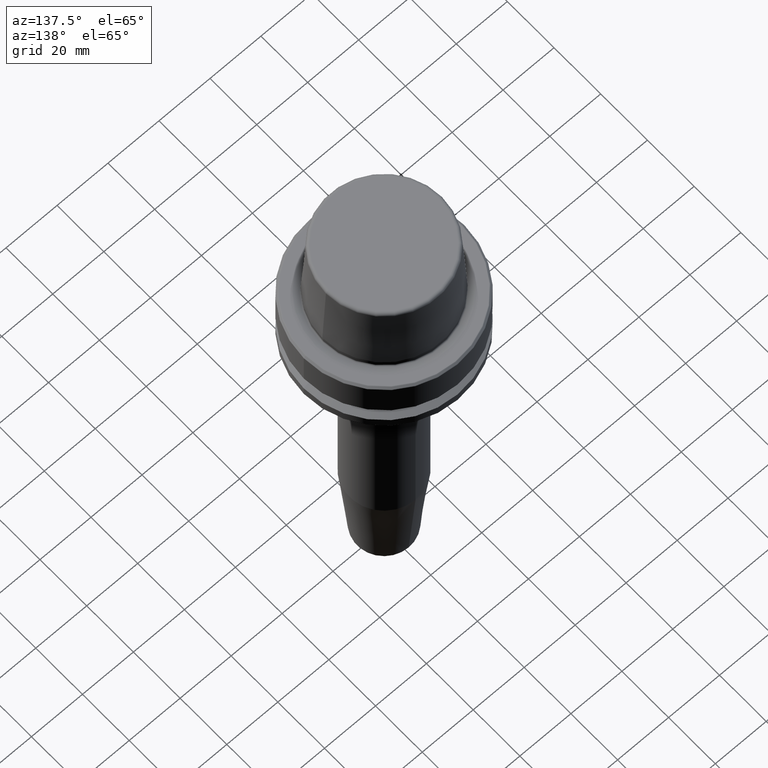
[diagram: clean part render]
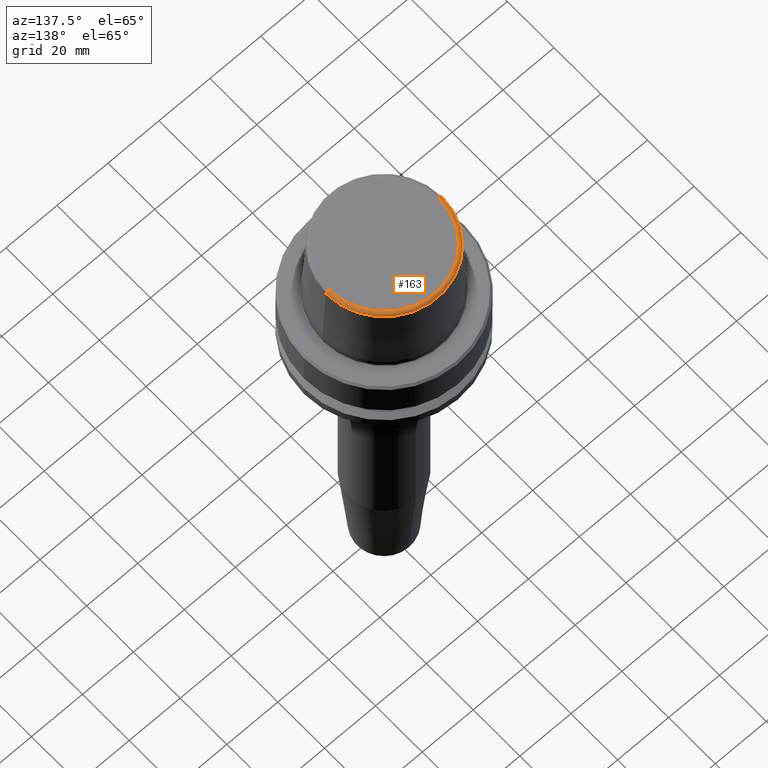
[diagram: same view with one face highlighted and labeled with its STEP entity id]
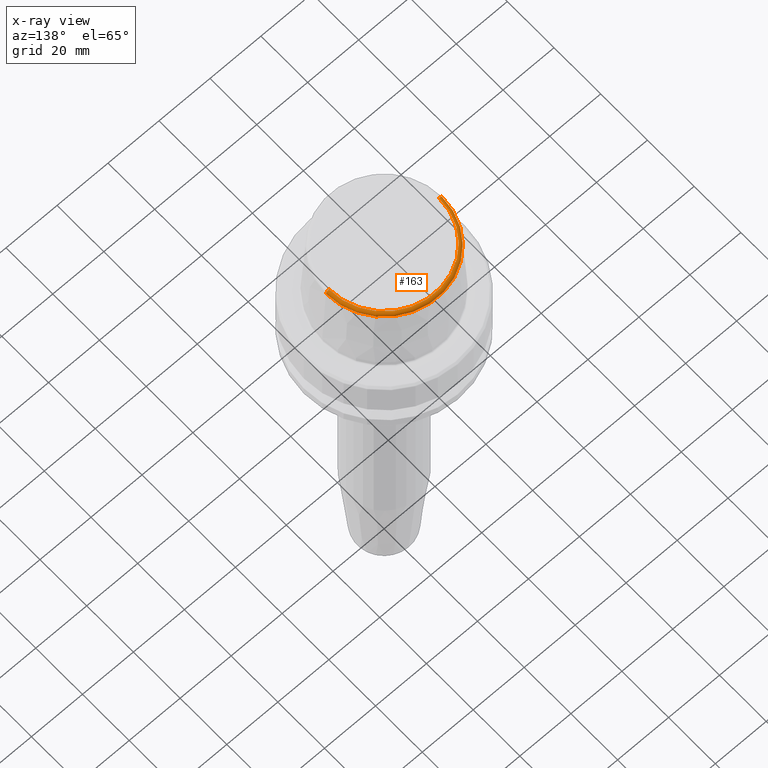
[diagram: x-ray of the same camera — body ghosted, the highlighted face saturated]
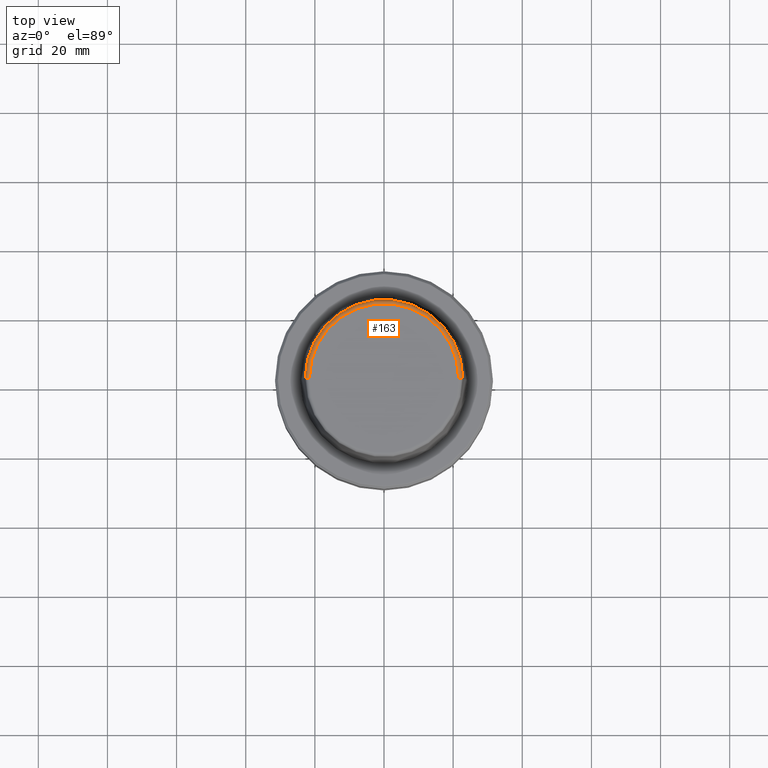
[diagram: same view with one face highlighted and labeled with its STEP entity id]
A machine part, auxiliary view. The second image highlights one B-rep face of the part: STEP entity #163.
The next image is the same camera in x-ray: the body ghosted, the highlighted face saturated — about 0% of this face is hidden behind the body in this view.
A second angle (top view) of the same face is appended — the face is thin or edge-on in the first view.
In plain terms, the highlighted toroidal blend (fillet) surface has major radius 21.5811 mm and minor (blend) radius 1.2 mm.
Its self-contained STEP definition (entity closure, byte-faithful):
#25 = EDGE_CURVE ( 'NONE', #262, #992, #889, .T. ) ;
#27 = DIRECTION ( 'NONE',  ( -0.0000000000000000000, -0.0000000000000000000, 1.000000000000000000 ) ) ;
#103 = CARTESIAN_POINT ( 'NONE',  ( -21.58108272732117100, 2.642920388414810300E-015, 30.69999999999999200 ) ) ;
#114 = DIRECTION ( 'NONE',  ( -1.000000000000000000, 1.224646799147353200E-016, 0.0000000000000000000 ) ) ;
#133 = AXIS2_PLACEMENT_3D ( 'NONE', #103, #211, #114 ) ;
#158 = DIRECTION ( 'NONE',  ( -0.0000000000000000000, -0.0000000000000000000, 1.000000000000000000 ) ) ;
#163 = ADVANCED_FACE ( 'NONE', ( #840 ), #1090, .T. ) ;
#166 = CARTESIAN_POINT ( 'NONE',  ( 0.0000000000000000000, 0.0000000000000000000, 31.89999999999999900 ) ) ;
#211 = DIRECTION ( 'NONE',  ( 1.224646799147353200E-016, 1.000000000000000000, 0.0000000000000000000 ) ) ;
#225 = EDGE_CURVE ( 'NONE', #1253, #936, #1036, .T. ) ;
#256 = CARTESIAN_POINT ( 'NONE',  ( 21.58108272732117100, 0.0000000000000000000, 30.69999999999999200 ) ) ;
#262 = VERTEX_POINT ( 'NONE', #462 ) ;
#268 = DIRECTION ( 'NONE',  ( 1.000000000000000000, 0.0000000000000000000, 0.0000000000000000000 ) ) ;
#355 = DIRECTION ( 'NONE',  ( 0.0000000000000000000, 0.0000000000000000000, -1.000000000000000000 ) ) ;
#378 = AXIS2_PLACEMENT_3D ( 'NONE', #166, #854, #268 ) ;
#383 = ORIENTED_EDGE ( 'NONE', *, *, #225, .F. ) ;
#413 = EDGE_LOOP ( 'NONE', ( #496, #520, #1148, #383 ) ) ;
#462 = CARTESIAN_POINT ( 'NONE',  ( -22.77957961851797100, 0.0000000000000000000, 30.76004333261571900 ) ) ;
#496 = ORIENTED_EDGE ( 'NONE', *, *, #630, .T. ) ;
#512 = CIRCLE ( 'NONE', #787, 22.77957961851797100 ) ;
#520 = ORIENTED_EDGE ( 'NONE', *, *, #25, .T. ) ;
#531 = CARTESIAN_POINT ( 'NONE',  ( 21.58108272732117100, 0.0000000000000000000, 31.89999999999999900 ) ) ;
#578 = CARTESIAN_POINT ( 'NONE',  ( 0.0000000000000000000, 0.0000000000000000000, 30.69999999999999200 ) ) ;
#624 = CARTESIAN_POINT ( 'NONE',  ( 0.0000000000000000000, 0.0000000000000000000, 30.76004333261571900 ) ) ;
#630 = EDGE_CURVE ( 'NONE', #1253, #262, #512, .T. ) ;
#673 = AXIS2_PLACEMENT_3D ( 'NONE', #256, #939, #355 ) ;
#726 = DIRECTION ( 'NONE',  ( 1.000000000000000000, 0.0000000000000000000, 0.0000000000000000000 ) ) ;
#787 = AXIS2_PLACEMENT_3D ( 'NONE', #624, #27, #726 ) ;
#793 = CARTESIAN_POINT ( 'NONE',  ( 22.77957961851797100, 2.876386432489616700E-015, 30.76004333261571900 ) ) ;
#810 = AXIS2_PLACEMENT_3D ( 'NONE', #578, #158, #1047 ) ;
#840 = FACE_OUTER_BOUND ( 'NONE', #413, .T. ) ;
#854 = DIRECTION ( 'NONE',  ( -0.0000000000000000000, -0.0000000000000000000, 1.000000000000000000 ) ) ;
#889 = CIRCLE ( 'NONE', #133, 1.200000000000003100 ) ;
#936 = VERTEX_POINT ( 'NONE', #531 ) ;
#939 = DIRECTION ( 'NONE',  ( 0.0000000000000000000, -1.000000000000000000, 0.0000000000000000000 ) ) ;
#992 = VERTEX_POINT ( 'NONE', #1125 ) ;
#1036 = CIRCLE ( 'NONE', #673, 1.200000000000003100 ) ;
#1047 = DIRECTION ( 'NONE',  ( 1.000000000000000000, 0.0000000000000000000, 0.0000000000000000000 ) ) ;
#1076 = EDGE_CURVE ( 'NONE', #936, #992, #1255, .T. ) ;
#1090 = TOROIDAL_SURFACE ( 'NONE', #810, 21.58108272732117100, 1.200000000000003100 ) ;
#1125 = CARTESIAN_POINT ( 'NONE',  ( -21.58108272732117100, 2.716307157494421400E-015, 31.89999999999999900 ) ) ;
#1148 = ORIENTED_EDGE ( 'NONE', *, *, #1076, .F. ) ;
#1253 = VERTEX_POINT ( 'NONE', #793 ) ;
#1255 = CIRCLE ( 'NONE', #378, 21.58108272732117100 ) ;